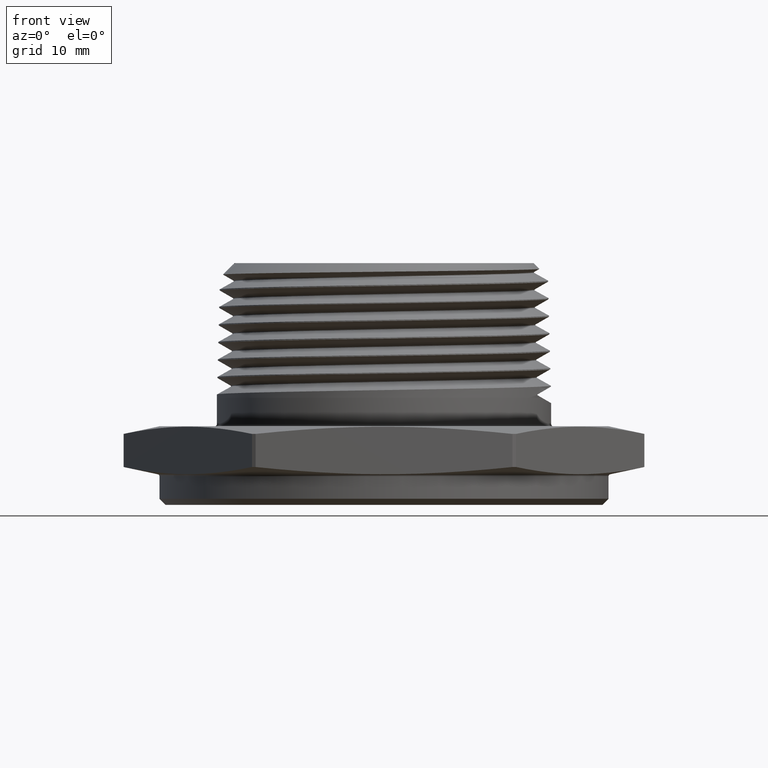
[diagram: clean part render]
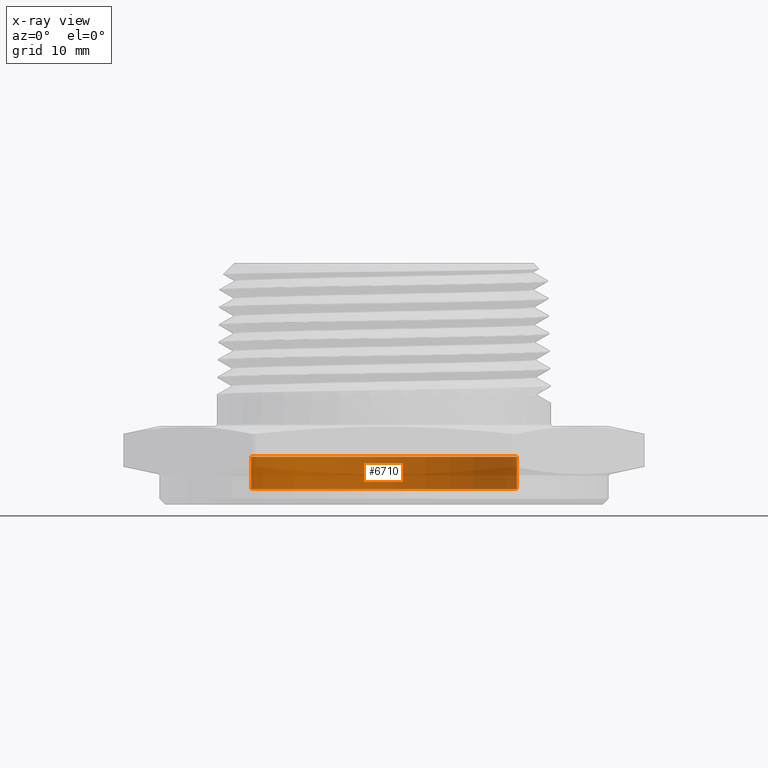
[diagram: x-ray — body ghosted, one internal face saturated and labeled with its STEP entity id]
A machine part, front view, then the same camera in x-ray: the body is ghosted and one INTERNAL B-rep face — a face not visible from any outside direction — is saturated and labeled: STEP entity #6710.
In plain terms, the highlighted cylindrical surface (partial cylindrical patch) has radius 16.764 mm, axis along (-0, -0, -1).
Its self-contained STEP definition (entity closure, byte-faithful):
#210 = FACE_OUTER_BOUND ( 'NONE', #2520, .T. ) ;
#213 = CYLINDRICAL_SURFACE ( 'NONE', #282, 0.6600000000000000300 ) ;
#282 = AXIS2_PLACEMENT_3D ( 'NONE', #4840, #4834, #4835 ) ;
#2520 = EDGE_LOOP ( 'NONE', ( #6190, #6189, #6188, #2540 ) ) ;
#2540 = ORIENTED_EDGE ( 'NONE', *, *, #3988, .F. ) ;
#3985 = EDGE_CURVE ( 'NONE', #6310, #6278, #4787, .T. ) ;
#3986 = EDGE_CURVE ( 'NONE', #6310, #6319, #4785, .T. ) ;
#3987 = EDGE_CURVE ( 'NONE', #6278, #6281, #4783, .T. ) ;
#3988 = EDGE_CURVE ( 'NONE', #6319, #6281, #4780, .T. ) ;
#4137 = AXIS2_PLACEMENT_3D ( 'NONE', #5358, #5359, #5360 ) ;
#4138 = AXIS2_PLACEMENT_3D ( 'NONE', #5361, #5362, #5363 ) ;
#4780 = LINE ( 'NONE', #5356, #6347 ) ;
#4782 = VECTOR ( 'NONE', #5355, 39.37007874015748100 ) ;
#4783 = CIRCLE ( 'NONE', #4138, 0.6600000000000000300 ) ;
#4785 = CIRCLE ( 'NONE', #4137, 0.6600000000000000300 ) ;
#4787 = LINE ( 'NONE', #5351, #4782 ) ;
#4834 = DIRECTION ( 'NONE',  ( -0.0000000000000000000, -0.0000000000000000000, -1.000000000000000000 ) ) ;
#4835 = DIRECTION ( 'NONE',  ( -1.000000000000000000, 0.0000000000000000000, 0.0000000000000000000 ) ) ;
#4840 = CARTESIAN_POINT ( 'NONE',  ( 3.673940397442165500E-018, 0.0000000000000000000, 0.08800000000000006400 ) ) ;
#5351 = CARTESIAN_POINT ( 'NONE',  ( 0.6600000000000000300, 8.082668874372531800E-017, 0.08800000000000006400 ) ) ;
#5355 = DIRECTION ( 'NONE',  ( -0.0000000000000000000, -0.0000000000000000000, -1.000000000000000000 ) ) ;
#5356 = CARTESIAN_POINT ( 'NONE',  ( -0.6600000000000000300, 0.0000000000000000000, 0.08800000000000006400 ) ) ;
#5357 = DIRECTION ( 'NONE',  ( -0.0000000000000000000, -0.0000000000000000000, -1.000000000000000000 ) ) ;
#5358 = CARTESIAN_POINT ( 'NONE',  ( 3.673940397442165500E-018, 0.0000000000000000000, 0.08800000000000006400 ) ) ;
#5359 = DIRECTION ( 'NONE',  ( 0.0000000000000000000, 0.0000000000000000000, 1.000000000000000000 ) ) ;
#5360 = DIRECTION ( 'NONE',  ( 1.000000000000000000, 0.0000000000000000000, 0.0000000000000000000 ) ) ;
#5361 = CARTESIAN_POINT ( 'NONE',  ( 3.673940397442165500E-018, 0.0000000000000000000, -0.07199999999999993900 ) ) ;
#5362 = DIRECTION ( 'NONE',  ( 0.0000000000000000000, 0.0000000000000000000, 1.000000000000000000 ) ) ;
#5363 = DIRECTION ( 'NONE',  ( 1.000000000000000000, 0.0000000000000000000, 0.0000000000000000000 ) ) ;
#5621 = CARTESIAN_POINT ( 'NONE',  ( 0.6600000000000000300, 8.082668874372531800E-017, -0.07199999999999993900 ) ) ;
#5624 = CARTESIAN_POINT ( 'NONE',  ( -0.6600000000000000300, 0.0000000000000000000, -0.07199999999999993900 ) ) ;
#5643 = CARTESIAN_POINT ( 'NONE',  ( 0.6600000000000000300, 8.082668874372531800E-017, 0.08800000000000006400 ) ) ;
#5649 = CARTESIAN_POINT ( 'NONE',  ( -0.6600000000000000300, 0.0000000000000000000, 0.08800000000000006400 ) ) ;
#6188 = ORIENTED_EDGE ( 'NONE', *, *, #3987, .T. ) ;
#6189 = ORIENTED_EDGE ( 'NONE', *, *, #3985, .T. ) ;
#6190 = ORIENTED_EDGE ( 'NONE', *, *, #3986, .F. ) ;
#6278 = VERTEX_POINT ( 'NONE', #5621 ) ;
#6281 = VERTEX_POINT ( 'NONE', #5624 ) ;
#6310 = VERTEX_POINT ( 'NONE', #5643 ) ;
#6319 = VERTEX_POINT ( 'NONE', #5649 ) ;
#6347 = VECTOR ( 'NONE', #5357, 39.37007874015748100 ) ;
#6710 = ADVANCED_FACE ( 'NONE', ( #210 ), #213, .T. ) ;